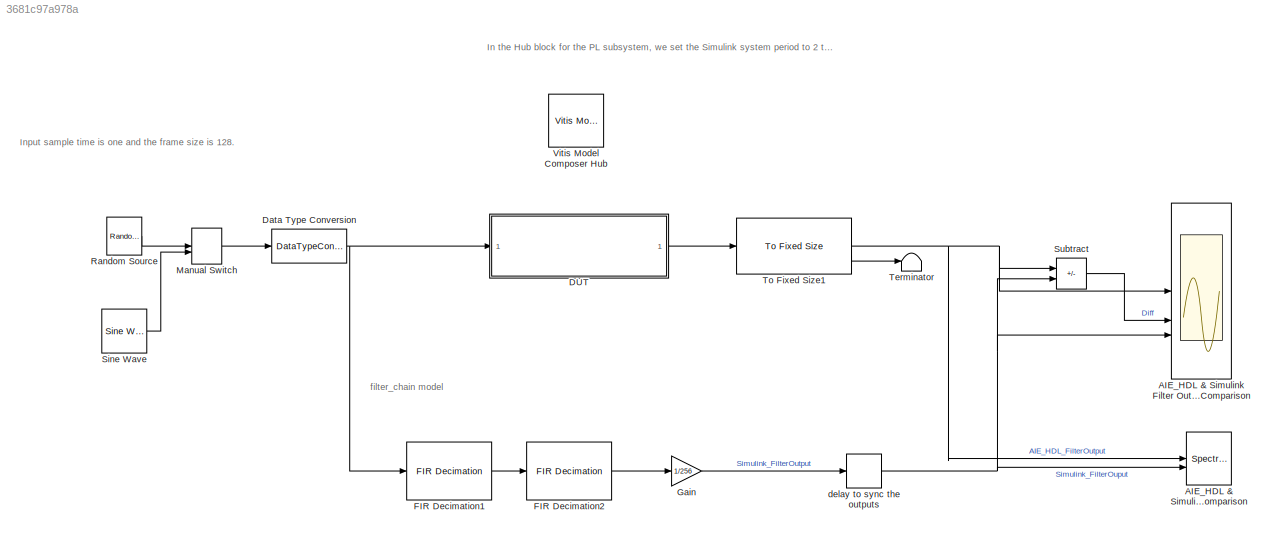
MODEL slx_3681c97a978a
KIND model
CONFIG AbsTol = auto
CONFIG EnableMultiTasking = off
CONFIG FixedStep = auto
CONFIG MaxStep = auto
CONFIG MinStep = auto
CONFIG RelTol = 1e-3
CONFIG SampleTimeConstraint = Unconstrained
CONFIG SolverName = VariableStepAuto
CONFIG StartTime = 0.0
CONFIG StopTime = 1000
BLOCK [Scope] AIE_HDL & Simulink Filter Output_Comparison
  Floating = off
  NumInputPorts = 3
  ScopeSpecificationString = Simulink.scopes.TimeScopeBlockCfg('CurrentConfiguration', extmgr.ConfigurationSet(extmgr.Configuration('Core','General UI',true),extmgr.Configuration('Core','Source UI',true),extmgr.Configuration('Sources','WiredSimulink',true),extmgr.Configuration('Visuals','Time Domain',true,'InputProcessing','FrameProcessing','SerializedDisplays',{struct('MinYLimReal','-72.75','MaxYLimReal','74.75','YLabelReal'...<+3278ch>
BLOCK [SpectrumAnalyzer] AIE_HDL & Simulink Specrum_Comparison
  AllowFFTLengthLessThanSamplesPerUpdate = on
  AveragingMethod = Exponential
  GraphicalSettings = {"GraphicalSettings":{"Style":{"BackgroundColor":[0.12941176470588237,0.12941176470588237,0.12941176470588237],"AxesColor":[0,0,0],"LabelsColor":[0.6862745098039216,0.6862745098039216,0.6862745098039216],"PreserveColors":false,"Visible":[true,true],"LineStyle":["-","-"],"LineColor":[[1,1,0.06666666666666667],[0.07450980392156863,0.6235294117647059,1]],"LineWidth":[1,1],"Marker":["none","none"],"Fo...<+933ch>
  NumInputPorts = 2
  SampleRate = 0.25
  ScopeFrameLocation = window
  ScopeSpecificationString = spbscopes.SpectrumAnalyzerBlockCfg('CurrentConfiguration', extmgr.ConfigurationSet(extmgr.Configuration('Core','General UI',true),extmgr.Configuration('Core','Source UI',true),extmgr.Configuration('Sources','WiredSimulink',true),extmgr.Configuration('Visuals','Spectrum',true,'AxesProperties',struct('Color',{[0 0 0],[0 0 0]},'XColor',{[0.686274509803922 0.686274509803922 0.686274509803922],[0.68627...<+2325ch>
  ShowLegend = on
  Span = 0.25
  StartFrequency = -0.125
  StopFrequency = 0.125
  WasSavedAsWebScope = on
  WindowPosition = [412.000000,249.000000,1280.000000,680.000000,]
  YLimits = [-11.33807945,69.60965855]
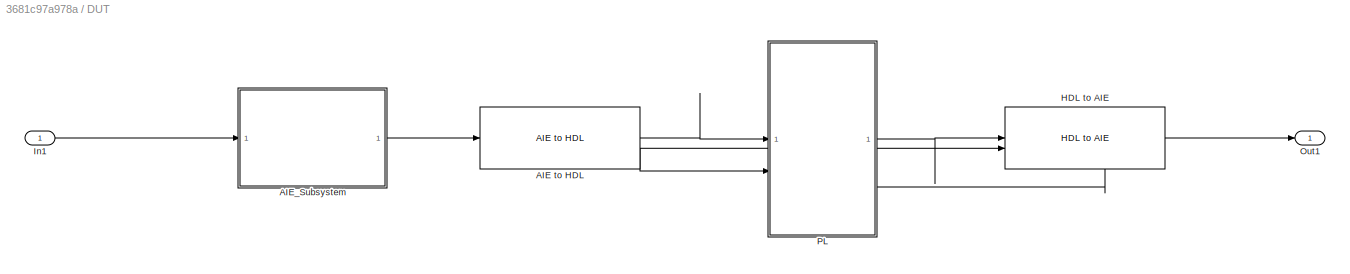
BLOCK [SubSystem] DUT
BLOCK [Reference] DUT/AIE to HDL  REF=aieUtilities/AIE to HDL
  SourceBlock = aieUtilities/AIE to HDL
  SourceType = AIE to HDL
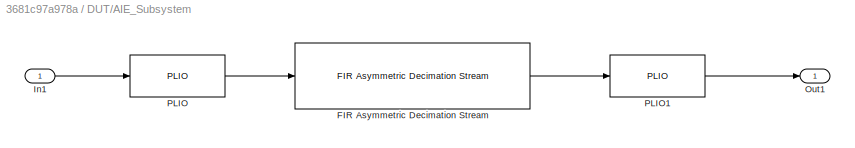
BLOCK [SubSystem] DUT/AIE_Subsystem
BLOCK [Reference] DUT/AIE_Subsystem/FIR Asymmetric Decimation Stream  REF=aieDSP/FIR Asymmetric Decimation Stream
  SourceBlock = aieDSP/FIR Asymmetric Decimation Stream
  SourceType = FIR Asymmetric Decimation Stream
BLOCK [Inport] DUT/AIE_Subsystem/In1
BLOCK [Outport] DUT/AIE_Subsystem/Out1
BLOCK [Reference] DUT/AIE_Subsystem/PLIO  REF=aieBasic/PLIO
  SourceBlock = aieBasic/PLIO
  SourceType = PLIO
BLOCK [Reference] DUT/AIE_Subsystem/PLIO1  REF=aieBasic/PLIO
  SourceBlock = aieBasic/PLIO
  SourceType = PLIO
BLOCK [Reference] DUT/HDL to AIE  REF=aieUtilities/HDL to AIE
  SourceBlock = aieUtilities/HDL to AIE
  SourceType = HDL to AIE
BLOCK [Inport] DUT/In1
BLOCK [Outport] DUT/Out1
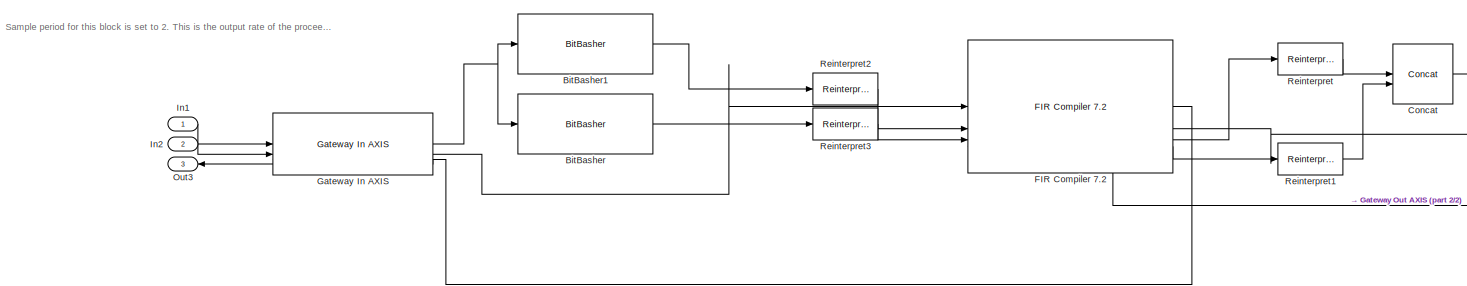
[diagram: DUT/PL - part 1/2, most of the canvas]
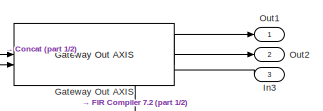
[diagram: DUT/PL - part 2/2, middle right region]
BLOCK [SubSystem] DUT/PL
  PortSchema = {"entries":[{"content":{"sides":[{"content":{"connectorIds":["In1","In2","Out3"]},"type":"ConnectorPlacement.EquallySpacedRectSide","uuid":"b9240e68-8c33-49ba-b00e-74953cef8815"},{"content":{"connectorIds":["Out1","Out2","In3"],"side":"RIGHT"},"type":"ConnectorPlacement.EquallySpacedRectSide","uuid":"ae9f69ab-13df-4ed6-8e03-b2ffeca92de6"},{"content":{"side":"TOP"},"type":"ConnectorPlacement.Equall...<+248ch>
BLOCK [Reference] DUT/PL/BitBasher  REF=hdlBasic/BitBasher
  SourceBlock = hdlBasic/BitBasher
  SourceType = BitBasher Block
BLOCK [Reference] DUT/PL/BitBasher1  REF=hdlBasic/BitBasher
  SourceBlock = hdlBasic/BitBasher
  SourceType = BitBasher Block
BLOCK [Reference] DUT/PL/Concat  REF=hdlBasic/Concat
  SourceBlock = hdlBasic/Concat
  SourceType = Bus Concatenator Block
BLOCK [Reference] DUT/PL/FIR Compiler 7.2  REF=hdlDSPIP/FIR Compiler 7.2 
  SourceBlock = hdlDSPIP/FIR Compiler 7.2
  SourceType = FIR Compiler 7.2 Block
BLOCK [Reference] DUT/PL/Gateway In AXIS  REF=hdlUtilities/Gateway In AXIS
  SourceBlock = hdlUtilities/Gateway In AXIS
  SourceType = Gateway In AXIS
BLOCK [Reference] DUT/PL/Gateway Out AXIS  REF=hdlUtilities/Gateway Out AXIS
  SourceBlock = hdlUtilities/Gateway Out AXIS
  SourceType = Gateway Out AXIS
BLOCK [Inport] DUT/PL/In1
BLOCK [Inport] DUT/PL/In2
  Port = 2
BLOCK [Inport] DUT/PL/In3
  Port = 3
BLOCK [Outport] DUT/PL/Out1
BLOCK [Outport] DUT/PL/Out2
  Port = 2
BLOCK [Outport] DUT/PL/Out3
  Port = 3
BLOCK [Reference] DUT/PL/Reinterpret  REF=hdlBasic/Reinterpret
  SourceBlock = hdlBasic/Reinterpret
  SourceType = Type Reinterpreter Block
BLOCK [Reference] DUT/PL/Reinterpret1  REF=hdlBasic/Reinterpret
  SourceBlock = hdlBasic/Reinterpret
  SourceType = Type Reinterpreter Block
BLOCK [Reference] DUT/PL/Reinterpret2  REF=hdlBasic/Reinterpret
  SourceBlock = hdlBasic/Reinterpret
  SourceType = Type Reinterpreter Block
BLOCK [Reference] DUT/PL/Reinterpret3  REF=hdlBasic/Reinterpret
  SourceBlock = hdlBasic/Reinterpret
  SourceType = Type Reinterpreter Block
BLOCK [DataTypeConversion] Data Type Conversion
  OutDataTypeStr = int32
  RndMeth = Floor
  SaturateOnIntegerOverflow = off
BLOCK [Reference] FIR Decimation1  REF=dspmlti4/FIR
Decimation
  SourceBlock = dspmlti4/FIR\nDecimation
  SourceType = FIR Decimation
  UserDataPersistent = on
BLOCK [Reference] FIR Decimation2  REF=dspmlti4/FIR
Decimation
  SourceBlock = dspmlti4/FIR\nDecimation
  SourceType = FIR Decimation
  UserDataPersistent = on
BLOCK [Gain] Gain
  Gain = 1/256
  OutDataTypeStr = Inherit: Same as input
BLOCK [ManualSwitch] Manual Switch
  CurrentSetting = 0
BLOCK [Reference] Random Source  REF=dspobslib/Random
Source
  SourceBlock = dspobslib/Random\nSource
  SourceType = Random Source Obsolete
  UserDataPersistent = on
BLOCK [Reference] Sine Wave  REF=dspsrcs4/Sine Wave
  SourceBlock = dspsrcs4/Sine Wave
  SourceType = Sine Wave
BLOCK [Sum] Subtract
  IconShape = rectangular
  Inputs = +-
BLOCK [Terminator] Terminator
BLOCK [Reference] To Fixed Size1  REF=aieUtilities/To Fixed Size
  SourceBlock = aieUtilities/To Fixed Size
  SourceType = To Fixed Size
BLOCK [Reference] Vitis Model Composer Hub  REF=vmcUtilities/Vitis Model Composer Hub
  SourceBlock = vmcUtilities/Vitis Model Composer Hub
  SourceType = VMC Hub
  Tag = genX
  UserDataPersistent = on
BLOCK [Delay] delay to sync the outputs
  DelayLength = 64
  InputPortMap = u0
  InputProcessing = Columns as channels (frame based)
ANNOTATION (root): In the Hub block for the PL subsystem, we set the Simulink system period to 2 to match the sample time for the PL subsystem. (we have set the sample time in the Gateway In AXIS block inside the PL subsystem to 2) We also set the FPGA clock period to 5ns, to set the target clock for the PL subsystem to 200 MHz.
ANNOTATION (root): Input sample time is one and the frame size is 128.
ANNOTATION (root): filter_chain model
ANNOTATION DUT/PL: Sample period for this block is set to 2. This is the output rate of the proceeding AI Engine decimator filter.
LINE DUT/AIE to HDL:1 -> DUT/PL:1
LINE DUT/AIE to HDL:2 -> DUT/PL:2
LINE DUT/AIE_Subsystem/FIR Asymmetric Decimation Stream:1 -> DUT/AIE_Subsystem/PLIO1:1
LINE DUT/AIE_Subsystem/In1:1 -> DUT/AIE_Subsystem/PLIO:1
LINE DUT/AIE_Subsystem/PLIO1:1 -> DUT/AIE_Subsystem/Out1:1
LINE DUT/AIE_Subsystem/PLIO:1 -> DUT/AIE_Subsystem/FIR Asymmetric Decimation Stream:1
LINE DUT/AIE_Subsystem:1 -> DUT/AIE to HDL:1
LINE DUT/HDL to AIE:1 -> DUT/Out1:1
LINE DUT/HDL to AIE:2 -> DUT/PL:3
LINE DUT/In1:1 -> DUT/AIE_Subsystem:1
LINE DUT/PL/BitBasher1:1 -> DUT/PL/Reinterpret2:1
LINE DUT/PL/BitBasher:1 -> DUT/PL/Reinterpret3:1
LINE DUT/PL/Concat:1 -> DUT/PL/Gateway Out AXIS:1
LINE DUT/PL/FIR Compiler 7.2:1 -> DUT/PL/Gateway In AXIS:3
LINE DUT/PL/FIR Compiler 7.2:2 -> DUT/PL/Gateway Out AXIS:2
LINE DUT/PL/FIR Compiler 7.2:3 -> DUT/PL/Reinterpret:1
LINE DUT/PL/FIR Compiler 7.2:4 -> DUT/PL/Reinterpret1:1
NET DUT/PL/Gateway In AXIS:1 -> DUT/PL/BitBasher1:1, DUT/PL/BitBasher:1
LINE DUT/PL/Gateway In AXIS:2 -> DUT/PL/FIR Compiler 7.2:1
LINE DUT/PL/Gateway In AXIS:3 -> DUT/PL/Out3:1
LINE DUT/PL/Gateway Out AXIS:1 -> DUT/PL/Out1:1
LINE DUT/PL/Gateway Out AXIS:2 -> DUT/PL/Out2:1
LINE DUT/PL/Gateway Out AXIS:3 -> DUT/PL/FIR Compiler 7.2:4
LINE DUT/PL/In1:1 -> DUT/PL/Gateway In AXIS:1
LINE DUT/PL/In2:1 -> DUT/PL/Gateway In AXIS:2
LINE DUT/PL/In3:1 -> DUT/PL/Gateway Out AXIS:3
LINE DUT/PL/Reinterpret1:1 -> DUT/PL/Concat:2
LINE DUT/PL/Reinterpret2:1 -> DUT/PL/FIR Compiler 7.2:2
LINE DUT/PL/Reinterpret3:1 -> DUT/PL/FIR Compiler 7.2:3
LINE DUT/PL/Reinterpret:1 -> DUT/PL/Concat:1
LINE DUT/PL:1 -> DUT/HDL to AIE:1
LINE DUT/PL:2 -> DUT/HDL to AIE:2
LINE DUT/PL:3 -> DUT/AIE to HDL:2
LINE DUT:1 -> To Fixed Size1:1
NET Data Type Conversion:1 -> DUT:1, FIR Decimation1:1
LINE FIR Decimation1:1 -> FIR Decimation2:1
LINE FIR Decimation2:1 -> Gain:1
LINE Gain:1 -> delay to sync the outputs:1
LINE Manual Switch:1 -> Data Type Conversion:1
LINE Random Source:1 -> Manual Switch:1
LINE Sine Wave:1 -> Manual Switch:2
LINE Subtract:1 -> AIE_HDL & Simulink Filter Output_Comparison:2
NET To Fixed Size1:1 -> AIE_HDL & Simulink Filter Output_Comparison:1, AIE_HDL & Simulink Specrum_Comparison:1, Subtract:1
LINE To Fixed Size1:2 -> Terminator:1
NET delay to sync the outputs:1 -> AIE_HDL & Simulink Filter Output_Comparison:3, AIE_HDL & Simulink Specrum_Comparison:2, Subtract:2
note: NET lines group one-source signal fan-out (src -> all destinations, sorted); 1:1 wires keep LINE
